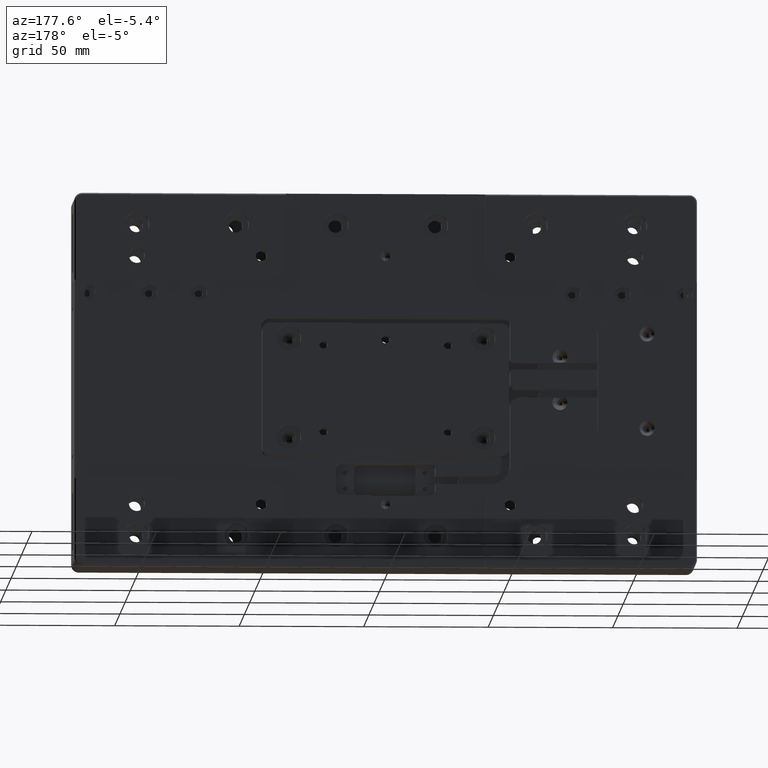
[diagram: clean part render]
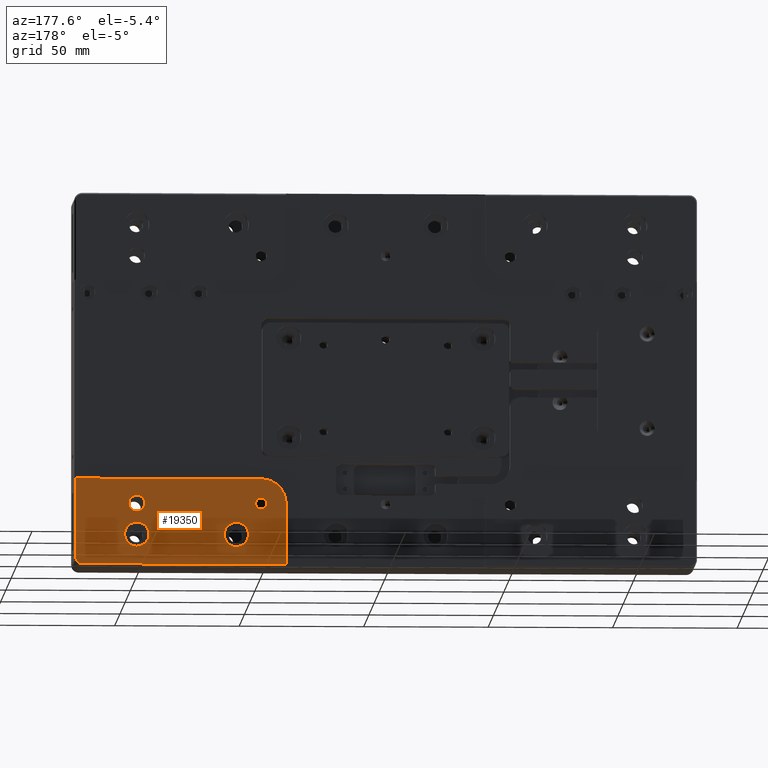
[diagram: same view with one face highlighted and labeled with its STEP entity id]
A machine part, auxiliary view. The second image highlights one B-rep face of the part: STEP entity #19350.
In plain terms, the highlighted planar face has unit normal (0, 1, 0).
Its self-contained STEP definition (entity closure, byte-faithful):
#155 = DIRECTION ( 'NONE',  ( -0.000000000000000000, -1.000000000000000000, -0.000000000000000000 ) ) ;
#781 = CARTESIAN_POINT ( 'NONE',  ( 50.00000000000000000, 12.00000000000000000, -50.00000000000000000 ) ) ;
#1150 = VERTEX_POINT ( 'NONE', #19723 ) ;
#1734 = EDGE_CURVE ( 'NONE', #29050, #29050, #32336, .T. ) ;
#1975 = ORIENTED_EDGE ( 'NONE', *, *, #32063, .T. ) ;
#2329 = CIRCLE ( 'NONE', #3488, 10.00000000000000178 ) ;
#2404 = DIRECTION ( 'NONE',  ( -0.000000000000000000, -1.000000000000000000, -0.000000000000000000 ) ) ;
#2510 = DIRECTION ( 'NONE',  ( 0.000000000000000000, 1.000000000000000000, 0.000000000000000000 ) ) ;
#2743 = CARTESIAN_POINT ( 'NONE',  ( 40.00000000000000000, 12.00000000000000178, -74.50000000000000000 ) ) ;
#3145 = VERTEX_POINT ( 'NONE', #2743 ) ;
#3488 = AXIS2_PLACEMENT_3D ( 'NONE', #10441, #2404, #18002 ) ;
#4414 = CARTESIAN_POINT ( 'NONE',  ( 124.5000000000000000, 12.00000000000000000, -75.00000000000000000 ) ) ;
#4519 = AXIS2_PLACEMENT_3D ( 'NONE', #26622, #2510, #13584 ) ;
#4920 = LINE ( 'NONE', #15811, #32201 ) ;
#4991 = VECTOR ( 'NONE', #29232, 1000.000000000000000 ) ;
#5178 = CARTESIAN_POINT ( 'NONE',  ( 60.00000000000000000, 12.00000000000000000, -62.50000000000000000 ) ) ;
#5254 = EDGE_LOOP ( 'NONE', ( #8687 ) ) ;
#6029 = FACE_OUTER_BOUND ( 'NONE', #30299, .T. ) ;
#6094 = EDGE_CURVE ( 'NONE', #31832, #33173, #17982, .T. ) ;
#6365 = DIRECTION ( 'NONE',  ( 0.000000000000000000, 0.000000000000000000, -1.000000000000000000 ) ) ;
#7066 = CARTESIAN_POINT ( 'NONE',  ( 40.00000000000000000, 12.00000000000000178, -50.00000000000000000 ) ) ;
#7145 = DIRECTION ( 'NONE',  ( 1.000000000000000000, -0.000000000000000000, 0.000000000000000000 ) ) ;
#7323 = CIRCLE ( 'NONE', #23293, 2.499999960551113620 ) ;
#8051 = FACE_BOUND ( 'NONE', #21386, .T. ) ;
#8480 = VECTOR ( 'NONE', #15564, 1000.000000000000000 ) ;
#8687 = ORIENTED_EDGE ( 'NONE', *, *, #23174, .T. ) ;
#10371 = FACE_BOUND ( 'NONE', #5254, .T. ) ;
#10441 = CARTESIAN_POINT ( 'NONE',  ( 50.00000000000000000, 12.00000000000000355, -50.00000000000000000 ) ) ;
#10622 = VERTEX_POINT ( 'NONE', #7066 ) ;
#10841 = ORIENTED_EDGE ( 'NONE', *, *, #30166, .T. ) ;
#11558 = CARTESIAN_POINT ( 'NONE',  ( 50.00000000000000000, 12.00000000000000355, -40.00000000000000000 ) ) ;
#11798 = EDGE_CURVE ( 'NONE', #3145, #12720, #4920, .T. ) ;
#12097 = CIRCLE ( 'NONE', #15525, 2.250000000000001776 ) ;
#12179 = CARTESIAN_POINT ( 'NONE',  ( 124.4999999803035422, 12.00000001969647734, -72.00000000000001421 ) ) ;
#12720 = VERTEX_POINT ( 'NONE', #21425 ) ;
#12796 = VERTEX_POINT ( 'NONE', #23509 ) ;
#13393 = DIRECTION ( 'NONE',  ( 0.000000000000000000, 0.000000000000000000, 1.000000000000000000 ) ) ;
#13584 = DIRECTION ( 'NONE',  ( 0.000000000000000000, -0.000000000000000000, 1.000000000000000000 ) ) ;
#14104 = ORIENTED_EDGE ( 'NONE', *, *, #1734, .T. ) ;
#14468 = VERTEX_POINT ( 'NONE', #23192 ) ;
#14895 = CARTESIAN_POINT ( 'NONE',  ( 122.0000000000000000, 12.00000003939294402, -72.00000000000001421 ) ) ;
#15098 = EDGE_CURVE ( 'NONE', #14468, #14468, #29831, .T. ) ;
#15480 = CARTESIAN_POINT ( 'NONE',  ( 100.0000000000000000, 12.00000000000000000, -53.20000000000000284 ) ) ;
#15525 = AXIS2_PLACEMENT_3D ( 'NONE', #781, #22214, #30619 ) ;
#15564 = DIRECTION ( 'NONE',  ( -0.000000000000000000, -0.000000000000000000, 1.000000000000000000 ) ) ;
#15693 = LINE ( 'NONE', #21045, #25542 ) ;
#15811 = CARTESIAN_POINT ( 'NONE',  ( 81.00000000000000000, 12.00000000000000000, -74.50000000000000000 ) ) ;
#17158 = CIRCLE ( 'NONE', #18854, 4.874999999999997335 ) ;
#17166 = DIRECTION ( 'NONE',  ( 0.000000000000000000, 0.000000000000000000, 1.000000000000000000 ) ) ;
#17674 = EDGE_CURVE ( 'NONE', #24433, #31832, #15693, .T. ) ;
#17690 = ORIENTED_EDGE ( 'NONE', *, *, #29039, .T. ) ;
#17982 = LINE ( 'NONE', #4414, #4991 ) ;
#18002 = DIRECTION ( 'NONE',  ( 0.000000000000000000, 0.000000000000000000, 1.000000000000000000 ) ) ;
#18032 = ORIENTED_EDGE ( 'NONE', *, *, #11798, .F. ) ;
#18578 = FACE_BOUND ( 'NONE', #25193, .T. ) ;
#18854 = AXIS2_PLACEMENT_3D ( 'NONE', #23048, #31093, #17166 ) ;
#19100 = PLANE ( 'NONE',  #4519 ) ;
#19350 = ADVANCED_FACE ( 'NONE', ( #10371, #8051, #18578, #27801, #6029 ), #19100, .T. ) ;
#19723 = CARTESIAN_POINT ( 'NONE',  ( 100.0000000000000000, 12.00000000000000000, -57.62500000000000000 ) ) ;
#20894 = LINE ( 'NONE', #23933, #8480 ) ;
#21045 = CARTESIAN_POINT ( 'NONE',  ( 125.0000000000000000, 12.00000000000000000, -40.00000000000000000 ) ) ;
#21386 = EDGE_LOOP ( 'NONE', ( #17690 ) ) ;
#21425 = CARTESIAN_POINT ( 'NONE',  ( 122.0000001351000094, 12.00000003939294402, -74.49999998030351378 ) ) ;
#22214 = DIRECTION ( 'NONE',  ( 0.000000000000000000, -1.000000000000000000, 0.000000000000000000 ) ) ;
#23048 = CARTESIAN_POINT ( 'NONE',  ( 100.0000000000000000, 12.00000000000000000, -62.50000000000000000 ) ) ;
#23174 = EDGE_CURVE ( 'NONE', #12796, #12796, #12097, .T. ) ;
#23192 = CARTESIAN_POINT ( 'NONE',  ( 60.00000000000000000, 12.00000000000000000, -57.62500000000000000 ) ) ;
#23204 = AXIS2_PLACEMENT_3D ( 'NONE', #30827, #24751, #6365 ) ;
#23262 = DIRECTION ( 'NONE',  ( -0.000000000000000000, 1.000000000000000000, -0.000000000000000000 ) ) ;
#23293 = AXIS2_PLACEMENT_3D ( 'NONE', #14895, #23262, #34171 ) ;
#23509 = CARTESIAN_POINT ( 'NONE',  ( 50.00000000000000000, 12.00000000000000000, -52.25000000000000711 ) ) ;
#23933 = CARTESIAN_POINT ( 'NONE',  ( 40.00000000000000000, 12.00000000000000000, -40.00000000000000000 ) ) ;
#24433 = VERTEX_POINT ( 'NONE', #11558 ) ;
#24751 = DIRECTION ( 'NONE',  ( 0.000000000000000000, -1.000000000000000000, 0.000000000000000000 ) ) ;
#25193 = EDGE_LOOP ( 'NONE', ( #26038 ) ) ;
#25542 = VECTOR ( 'NONE', #7145, 1000.000000000000000 ) ;
#25720 = ORIENTED_EDGE ( 'NONE', *, *, #6094, .T. ) ;
#26029 = ORIENTED_EDGE ( 'NONE', *, *, #17674, .T. ) ;
#26038 = ORIENTED_EDGE ( 'NONE', *, *, #15098, .T. ) ;
#26622 = CARTESIAN_POINT ( 'NONE',  ( -125.0000000000000000, 12.00000000000000000, -75.00000000000000000 ) ) ;
#26700 = DIRECTION ( 'NONE',  ( 1.000000000000000000, -0.000000000000000000, 0.000000000000000000 ) ) ;
#27705 = CARTESIAN_POINT ( 'NONE',  ( 124.5000000000000000, 12.00000000000000533, -40.00000000000000000 ) ) ;
#27801 = FACE_BOUND ( 'NONE', #29409, .T. ) ;
#29039 = EDGE_CURVE ( 'NONE', #1150, #1150, #17158, .T. ) ;
#29050 = VERTEX_POINT ( 'NONE', #15480 ) ;
#29232 = DIRECTION ( 'NONE',  ( -0.000000000000000000, 0.000000000000000000, -1.000000000000000000 ) ) ;
#29272 = AXIS2_PLACEMENT_3D ( 'NONE', #5178, #155, #13393 ) ;
#29409 = EDGE_LOOP ( 'NONE', ( #14104 ) ) ;
#29831 = CIRCLE ( 'NONE', #29272, 4.874999999999997335 ) ;
#30166 = EDGE_CURVE ( 'NONE', #33173, #12720, #7323, .T. ) ;
#30299 = EDGE_LOOP ( 'NONE', ( #10841, #18032, #1975, #32304, #26029, #25720 ) ) ;
#30619 = DIRECTION ( 'NONE',  ( 0.000000000000000000, 0.000000000000000000, -1.000000000000000000 ) ) ;
#30827 = CARTESIAN_POINT ( 'NONE',  ( 100.0000000000000000, 12.00000000000000000, -50.00000000000000000 ) ) ;
#31093 = DIRECTION ( 'NONE',  ( -0.000000000000000000, -1.000000000000000000, -0.000000000000000000 ) ) ;
#31832 = VERTEX_POINT ( 'NONE', #27705 ) ;
#32063 = EDGE_CURVE ( 'NONE', #3145, #10622, #20894, .T. ) ;
#32201 = VECTOR ( 'NONE', #26700, 1000.000000000000000 ) ;
#32304 = ORIENTED_EDGE ( 'NONE', *, *, #33835, .F. ) ;
#32336 = CIRCLE ( 'NONE', #23204, 3.200000000000001510 ) ;
#33173 = VERTEX_POINT ( 'NONE', #12179 ) ;
#33835 = EDGE_CURVE ( 'NONE', #24433, #10622, #2329, .T. ) ;
#34171 = DIRECTION ( 'NONE',  ( 0.000000000000000000, 0.000000000000000000, -1.000000000000000000 ) ) ;